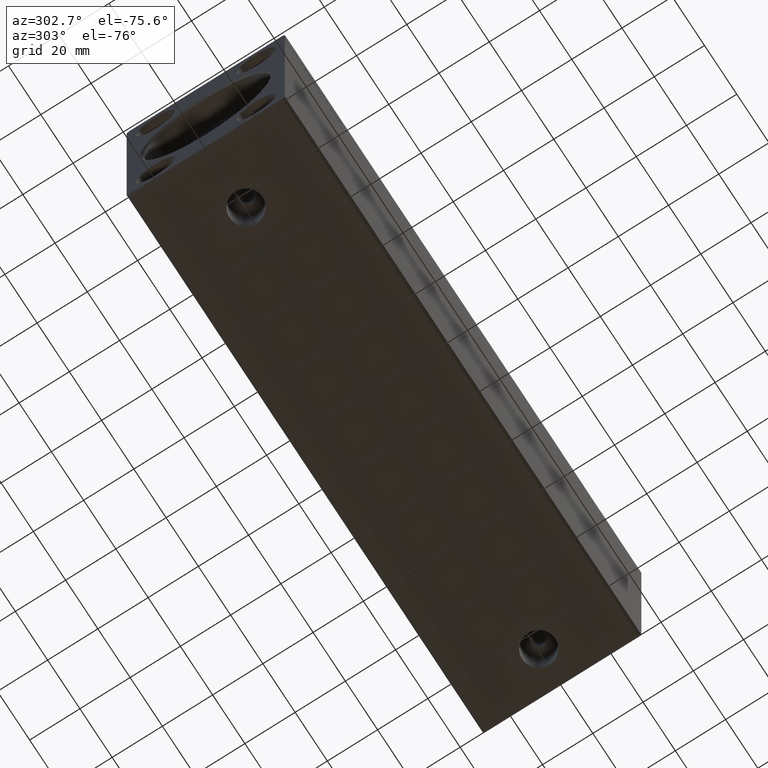
[diagram: clean part render]
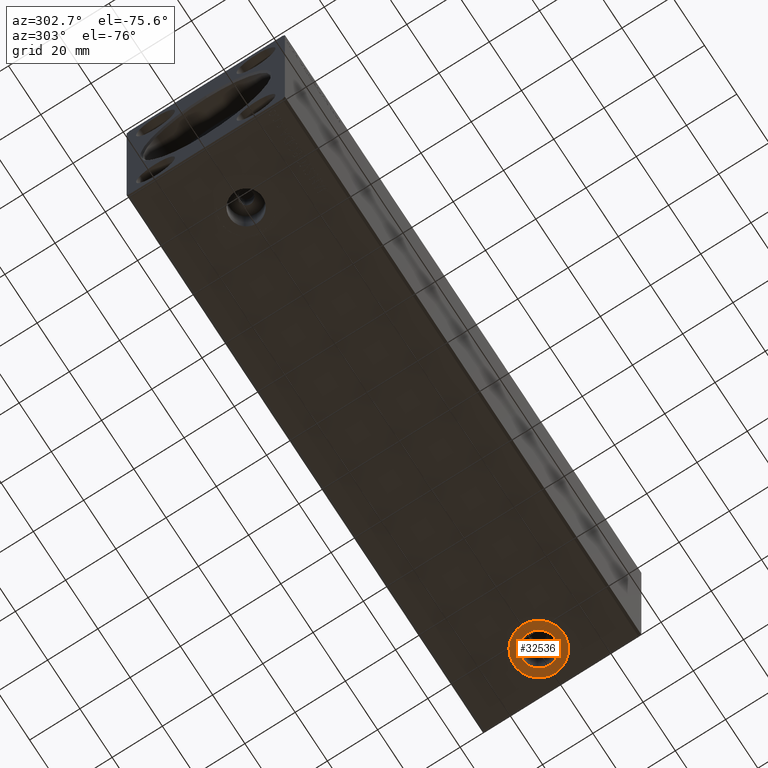
[diagram: same view with one face highlighted and labeled with its STEP entity id]
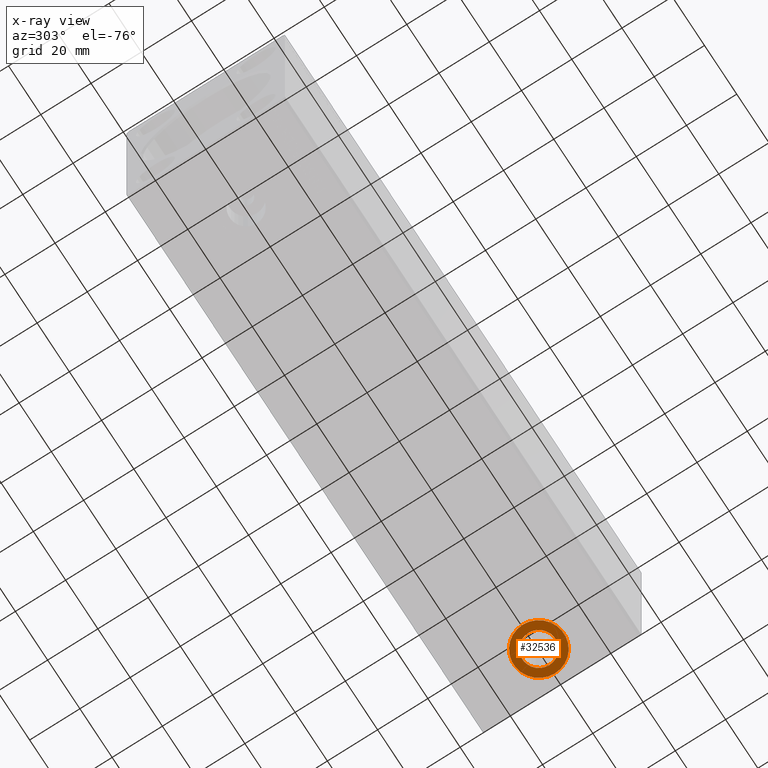
[diagram: x-ray of the same camera — body ghosted, the highlighted face saturated]
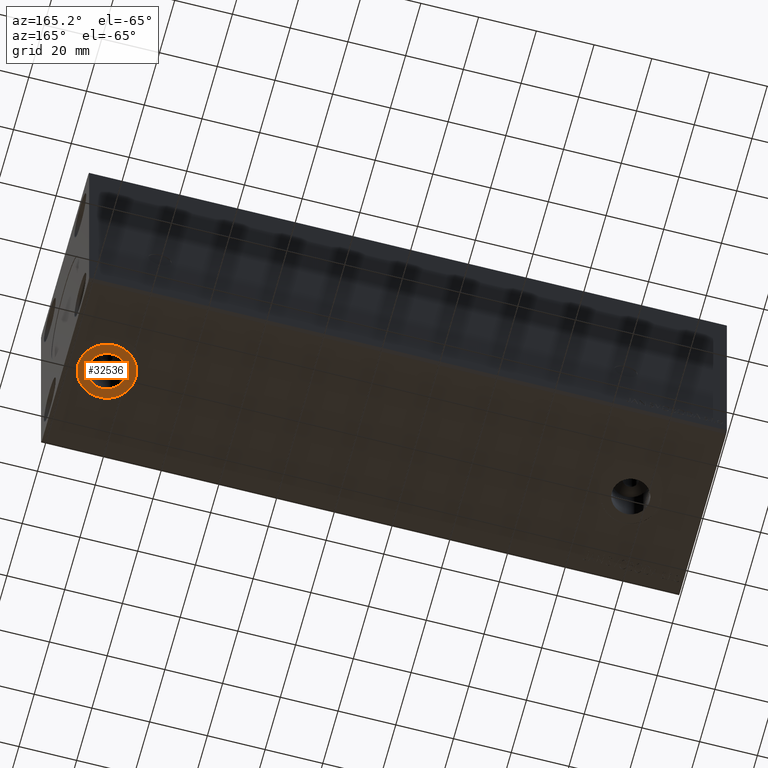
[diagram: same view with one face highlighted and labeled with its STEP entity id]
A machine part, auxiliary view. The second image highlights one B-rep face of the part: STEP entity #32536.
The next image is the same camera in x-ray: the body ghosted, the highlighted face saturated — about 0% of this face is hidden behind the body in this view.
A second angle (auxiliary view) of the same face is appended — the face is thin or edge-on in the first view.
In plain terms, the highlighted planar face has unit normal (0, 0, -1).
Its self-contained STEP definition (entity closure, byte-faithful):
#257 = VERTEX_POINT ( 'NONE', #40126 ) ;
#473 = EDGE_CURVE ( 'NONE', #21112, #839, #19403, .T. ) ;
#558 = CARTESIAN_POINT ( 'NONE',  ( 213.0799999999999557, -2.298335815756693676E-14, -42.40000000000000568 ) ) ;
#839 = VERTEX_POINT ( 'NONE', #14665 ) ;
#857 = AXIS2_PLACEMENT_3D ( 'NONE', #15846, #28938, #42036 ) ;
#946 = DIRECTION ( 'NONE',  ( 0.000000000000000000, 0.000000000000000000, -1.000000000000000000 ) ) ;
#1160 = PLANE ( 'NONE',  #20466 ) ;
#1234 = DIRECTION ( 'NONE',  ( -1.000000000000000000, 0.000000000000000000, 0.000000000000000000 ) ) ;
#6182 = DIRECTION ( 'NONE',  ( -1.000000000000000000, 0.000000000000000000, 0.000000000000000000 ) ) ;
#6969 = FACE_BOUND ( 'NONE', #32043, .T. ) ;
#10173 = DIRECTION ( 'NONE',  ( -1.000000000000000000, 0.000000000000000000, 0.000000000000000000 ) ) ;
#13103 = EDGE_CURVE ( 'NONE', #839, #21112, #26505, .T. ) ;
#14273 = DIRECTION ( 'NONE',  ( -1.000000000000000000, 0.000000000000000000, -0.000000000000000000 ) ) ;
#14665 = CARTESIAN_POINT ( 'NONE',  ( 199.9199999999999591, -2.378917575140590211E-14, -42.40000000000000568 ) ) ;
#14914 = AXIS2_PLACEMENT_3D ( 'NONE', #36451, #29784, #6182 ) ;
#15846 = CARTESIAN_POINT ( 'NONE',  ( 206.4999999999999716, -2.378917575140590211E-14, -42.40000000000000568 ) ) ;
#16210 = EDGE_CURVE ( 'NONE', #37431, #257, #34016, .T. ) ;
#16733 = ORIENTED_EDGE ( 'NONE', *, *, #473, .F. ) ;
#18949 = CARTESIAN_POINT ( 'NONE',  ( 196.4999999999999432, -2.378917575140590211E-14, -42.40000000000000568 ) ) ;
#19403 = CIRCLE ( 'NONE', #857, 6.580000000000002736 ) ;
#19828 = EDGE_CURVE ( 'NONE', #257, #37431, #33443, .T. ) ;
#20070 = FACE_OUTER_BOUND ( 'NONE', #24138, .T. ) ;
#20466 = AXIS2_PLACEMENT_3D ( 'NONE', #26728, #946, #14273 ) ;
#20964 = ORIENTED_EDGE ( 'NONE', *, *, #13103, .F. ) ;
#21112 = VERTEX_POINT ( 'NONE', #558 ) ;
#23906 = DIRECTION ( 'NONE',  ( 0.000000000000000000, 0.000000000000000000, -1.000000000000000000 ) ) ;
#24138 = EDGE_LOOP ( 'NONE', ( #41143, #28035 ) ) ;
#26505 = CIRCLE ( 'NONE', #26538, 6.580000000000002736 ) ;
#26538 = AXIS2_PLACEMENT_3D ( 'NONE', #39377, #23906, #10173 ) ;
#26728 = CARTESIAN_POINT ( 'NONE',  ( 206.4999999999999716, -2.378917575140590211E-14, -42.40000000000000568 ) ) ;
#28035 = ORIENTED_EDGE ( 'NONE', *, *, #19828, .T. ) ;
#28938 = DIRECTION ( 'NONE',  ( 0.000000000000000000, 0.000000000000000000, -1.000000000000000000 ) ) ;
#29784 = DIRECTION ( 'NONE',  ( 0.000000000000000000, 0.000000000000000000, -1.000000000000000000 ) ) ;
#32043 = EDGE_LOOP ( 'NONE', ( #20964, #16733 ) ) ;
#32536 = ADVANCED_FACE ( 'NONE', ( #6969, #20070 ), #1160, .T. ) ;
#33443 = CIRCLE ( 'NONE', #14914, 10.00000000000000888 ) ;
#34016 = CIRCLE ( 'NONE', #41570, 10.00000000000000888 ) ;
#34716 = DIRECTION ( 'NONE',  ( 0.000000000000000000, 0.000000000000000000, -1.000000000000000000 ) ) ;
#36451 = CARTESIAN_POINT ( 'NONE',  ( 206.4999999999999716, -2.378917575140590211E-14, -42.40000000000000568 ) ) ;
#37431 = VERTEX_POINT ( 'NONE', #18949 ) ;
#39377 = CARTESIAN_POINT ( 'NONE',  ( 206.4999999999999716, -2.378917575140590211E-14, -42.40000000000000568 ) ) ;
#40126 = CARTESIAN_POINT ( 'NONE',  ( 216.4999999999999716, -2.256452895225854748E-14, -42.40000000000000568 ) ) ;
#40741 = CARTESIAN_POINT ( 'NONE',  ( 206.4999999999999716, -2.378917575140590211E-14, -42.40000000000000568 ) ) ;
#41143 = ORIENTED_EDGE ( 'NONE', *, *, #16210, .T. ) ;
#41570 = AXIS2_PLACEMENT_3D ( 'NONE', #40741, #34716, #1234 ) ;
#42036 = DIRECTION ( 'NONE',  ( -1.000000000000000000, 0.000000000000000000, 0.000000000000000000 ) ) ;